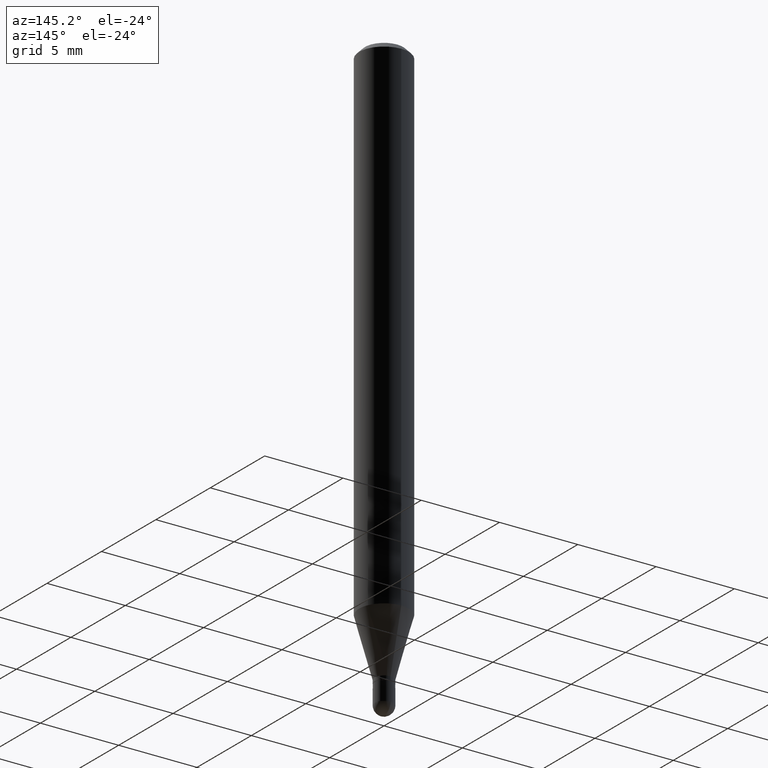
[diagram: clean part render]
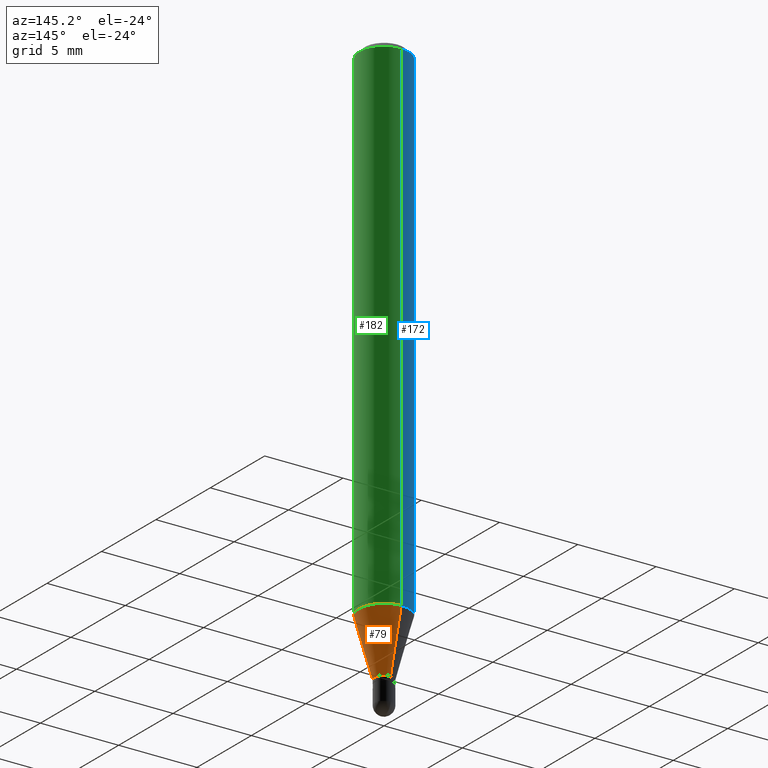
[diagram: same view with three faces highlighted in distinct colors, each labeled with its STEP entity id]
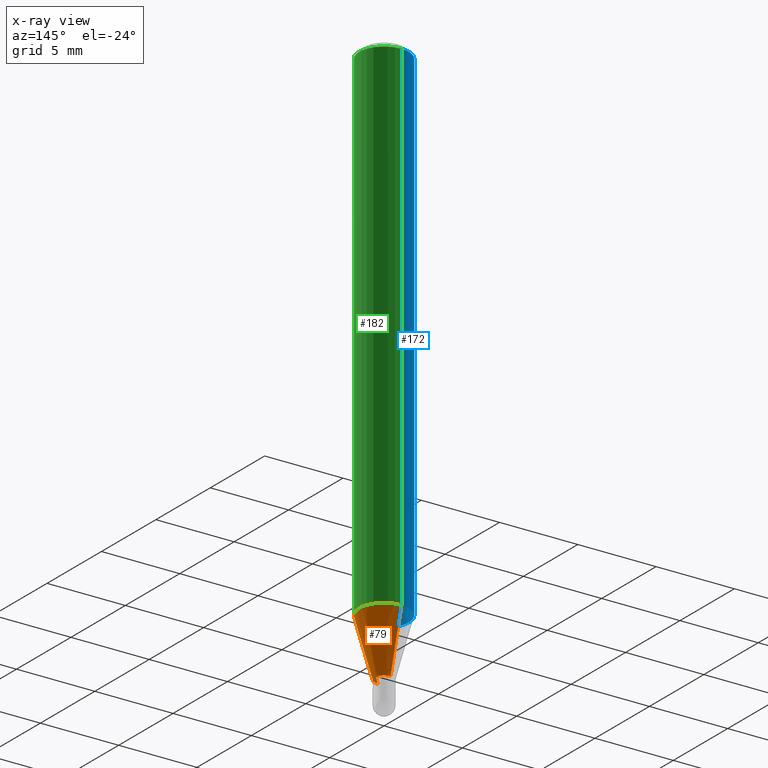
[diagram: x-ray of the same camera — body ghosted, the three highlighted faces saturated]
A machine part, auxiliary view with three faces highlighted in distinct colors.
The next image is the same camera in x-ray (body ghosted, the three faces saturated) — at least one of them is partly hidden behind the body in this view.
Their STEP definitions:

[orange] entity #79 — the highlighted conical surface has half-angle 15 deg.
#24 = DIRECTION ( 'NONE',  ( -2.445455239514301425E-29, 3.491500767087948658E-15, 1.000000000000000000 ) ) ;
#44 = DIRECTION ( 'NONE',  ( -6.982962677686266711E-15, -1.000000000000000000, 0.000000000000000000 ) ) ;
#51 = DIRECTION ( 'NONE',  ( 1.839019923739601104E-15, 0.2588190451025250693, 0.9659258262890670910 ) ) ;
#56 = LINE ( 'NONE', #323, #447 ) ;
#61 = AXIS2_PLACEMENT_3D ( 'NONE', #136, #370, #126 ) ;
#73 = VERTEX_POINT ( 'NONE', #241 ) ;
#74 = VERTEX_POINT ( 'NONE', #477 ) ;
#78 = ORIENTED_EDGE ( 'NONE', *, *, #278, .T. ) ;
#79 = ADVANCED_FACE ( 'NONE', ( #316 ), #267, .T. ) ;
#108 = CIRCLE ( 'NONE', #61, 0.02349999999999992373 ) ;
#109 = DIRECTION ( 'NONE',  ( -6.982962677686265922E-15, -1.000000000000000000, 4.370956789862821150E-15 ) ) ;
#124 = VECTOR ( 'NONE', #51, 39.37007874015748143 ) ;
#126 = DIRECTION ( 'NONE',  ( -6.982962677686266711E-15, -1.000000000000000000, 0.000000000000000000 ) ) ;
#136 = CARTESIAN_POINT ( 'NONE',  ( 3.470100984870794187E-29, -4.954439588497799171E-15, -1.419000000000000039 ) ) ;
#138 = CARTESIAN_POINT ( 'NONE',  ( -4.364351673553606573E-16, -0.06250000000000446865, -1.273450018504813874 ) ) ;
#141 = AXIS2_PLACEMENT_3D ( 'NONE', #221, #24, #109 ) ;
#193 = ORIENTED_EDGE ( 'NONE', *, *, #264, .T. ) ;
#214 = DIRECTION ( 'NONE',  ( -1.807323732225330928E-15, -0.2588190451025182970, 0.9659258262890689783 ) ) ;
#221 = CARTESIAN_POINT ( 'NONE',  ( 3.114165020012181903E-29, -4.446251716457720788E-15, -1.273450018504814096 ) ) ;
#241 = CARTESIAN_POINT ( 'NONE',  ( -1.640996229255920244E-16, -0.02350000000000488157, -1.419000000000000039 ) ) ;
#249 = EDGE_CURVE ( 'NONE', #73, #346, #56, .T. ) ;
#264 = EDGE_CURVE ( 'NONE', #73, #74, #108, .T. ) ;
#267 = CONICAL_SURFACE ( 'NONE', #375, 0.02349999999999992373, 0.2617993877991502960 ) ;
#278 = EDGE_CURVE ( 'NONE', #74, #496, #374, .T. ) ;
#302 = EDGE_LOOP ( 'NONE', ( #193, #78, #446, #381 ) ) ;
#306 = CIRCLE ( 'NONE', #141, 0.06250000000000000000 ) ;
#316 = FACE_OUTER_BOUND ( 'NONE', #302, .T. ) ;
#323 = CARTESIAN_POINT ( 'NONE',  ( -1.640996229255920244E-16, -0.02350000000000488157, -1.419000000000000039 ) ) ;
#328 = CARTESIAN_POINT ( 'NONE',  ( 1.669775429036576870E-16, 0.02349999999999496936, -1.419000000000000039 ) ) ;
#346 = VERTEX_POINT ( 'NONE', #138 ) ;
#355 = EDGE_CURVE ( 'NONE', #346, #496, #306, .T. ) ;
#361 = CARTESIAN_POINT ( 'NONE',  ( 3.470100984870794187E-29, -4.954439588497799171E-15, -1.419000000000000039 ) ) ;
#370 = DIRECTION ( 'NONE',  ( -2.445455239514301425E-29, 3.491500767087948658E-15, 1.000000000000000000 ) ) ;
#374 = LINE ( 'NONE', #328, #124 ) ;
#375 = AXIS2_PLACEMENT_3D ( 'NONE', #361, #481, #44 ) ;
#381 = ORIENTED_EDGE ( 'NONE', *, *, #249, .F. ) ;
#391 = CARTESIAN_POINT ( 'NONE',  ( 4.440892098500934804E-16, 0.06249999999999553135, -1.273450018504814318 ) ) ;
#446 = ORIENTED_EDGE ( 'NONE', *, *, #355, .F. ) ;
#447 = VECTOR ( 'NONE', #214, 39.37007874015748143 ) ;
#477 = CARTESIAN_POINT ( 'NONE',  ( 3.055333763768757932E-16, 0.02349999999999496589, -1.419000000000000039 ) ) ;
#481 = DIRECTION ( 'NONE',  ( -2.445455239514301425E-29, 3.491500767087948658E-15, 1.000000000000000000 ) ) ;
#496 = VERTEX_POINT ( 'NONE', #391 ) ;

[blue] entity #172 — the highlighted cylindrical surface (edge-blend (fillet) strip) has radius 1.5875 mm, axis along (-0, 0, 1).
#5 = DIRECTION ( 'NONE',  ( -2.445455239514301425E-29, 3.491500767087948658E-15, 1.000000000000000000 ) ) ;
#14 = CYLINDRICAL_SURFACE ( 'NONE', #478, 0.06250000000000000000 ) ;
#17 = LINE ( 'NONE', #19, #410 ) ;
#19 = CARTESIAN_POINT ( 'NONE',  ( -4.364351673553916201E-16, -0.06250000000000000000, 2.182187979429967912E-16 ) ) ;
#20 = EDGE_CURVE ( 'NONE', #134, #387, #468, .T. ) ;
#38 = EDGE_CURVE ( 'NONE', #496, #134, #434, .T. ) ;
#52 = EDGE_CURVE ( 'NONE', #496, #346, #210, .T. ) ;
#75 = CARTESIAN_POINT ( 'NONE',  ( 4.440892098500625669E-16, 0.06250000000000000000, -2.182187979429967912E-16 ) ) ;
#81 = DIRECTION ( 'NONE',  ( -6.982962677686265922E-15, -1.000000000000000000, 4.370956789862821150E-15 ) ) ;
#130 = CARTESIAN_POINT ( 'NONE',  ( 4.440892098500938748E-16, 0.06249999999999995143, -0.01500000000000022669 ) ) ;
#134 = VERTEX_POINT ( 'NONE', #130 ) ;
#138 = CARTESIAN_POINT ( 'NONE',  ( -4.364351673553606573E-16, -0.06250000000000446865, -1.273450018504813874 ) ) ;
#154 = DIRECTION ( 'NONE',  ( -2.445455239514301425E-29, 3.491500767087948658E-15, 1.000000000000000000 ) ) ;
#166 = DIRECTION ( 'NONE',  ( -2.445455239514301425E-29, 3.491500767087948658E-15, 1.000000000000000000 ) ) ;
#169 = VECTOR ( 'NONE', #166, 39.37007874015748143 ) ;
#171 = DIRECTION ( 'NONE',  ( -2.445455239514301425E-29, 3.491500767087948658E-15, 1.000000000000000000 ) ) ;
#172 = ADVANCED_FACE ( 'NONE', ( #495 ), #14, .T. ) ;
#194 = AXIS2_PLACEMENT_3D ( 'NONE', #399, #5, #81 ) ;
#209 = DIRECTION ( 'NONE',  ( -2.445455239514301425E-29, 3.491500767087948658E-15, 1.000000000000000000 ) ) ;
#210 = CIRCLE ( 'NONE', #194, 0.06250000000000000000 ) ;
#215 = EDGE_CURVE ( 'NONE', #346, #387, #17, .T. ) ;
#247 = CARTESIAN_POINT ( 'NONE',  ( 3.668182859271454205E-31, -5.237251150631926020E-17, -0.01500000000000000812 ) ) ;
#266 = EDGE_LOOP ( 'NONE', ( #269, #425, #336, #500 ) ) ;
#269 = ORIENTED_EDGE ( 'NONE', *, *, #38, .F. ) ;
#336 = ORIENTED_EDGE ( 'NONE', *, *, #215, .T. ) ;
#346 = VERTEX_POINT ( 'NONE', #138 ) ;
#387 = VERTEX_POINT ( 'NONE', #457 ) ;
#391 = CARTESIAN_POINT ( 'NONE',  ( 4.440892098500934804E-16, 0.06249999999999553135, -1.273450018504814318 ) ) ;
#399 = CARTESIAN_POINT ( 'NONE',  ( 3.114165020012181903E-29, -4.446251716457720788E-15, -1.273450018504814096 ) ) ;
#407 = DIRECTION ( 'NONE',  ( -6.982962677686265922E-15, -1.000000000000000000, 3.483106191921935554E-15 ) ) ;
#410 = VECTOR ( 'NONE', #171, 39.37007874015748143 ) ;
#425 = ORIENTED_EDGE ( 'NONE', *, *, #52, .T. ) ;
#434 = LINE ( 'NONE', #75, #169 ) ;
#449 = CARTESIAN_POINT ( 'NONE',  ( 0.000000000000000000, 0.000000000000000000, 0.000000000000000000 ) ) ;
#452 = DIRECTION ( 'NONE',  ( -6.982962677686265922E-15, -1.000000000000000000, 3.491500767087948658E-15 ) ) ;
#457 = CARTESIAN_POINT ( 'NONE',  ( -4.364351673553912750E-16, -0.06250000000000005551, -0.01499999999999979128 ) ) ;
#468 = CIRCLE ( 'NONE', #487, 0.06250000000000000000 ) ;
#478 = AXIS2_PLACEMENT_3D ( 'NONE', #449, #209, #452 ) ;
#487 = AXIS2_PLACEMENT_3D ( 'NONE', #247, #154, #407 ) ;
#495 = FACE_OUTER_BOUND ( 'NONE', #266, .T. ) ;
#496 = VERTEX_POINT ( 'NONE', #391 ) ;
#500 = ORIENTED_EDGE ( 'NONE', *, *, #20, .F. ) ;

[green] entity #182 — the highlighted cylindrical surface (edge-blend (fillet) strip) has radius 1.5875 mm, axis along (-0, 0, 1).
#17 = LINE ( 'NONE', #19, #410 ) ;
#19 = CARTESIAN_POINT ( 'NONE',  ( -4.364351673553916201E-16, -0.06250000000000000000, 2.182187979429967912E-16 ) ) ;
#24 = DIRECTION ( 'NONE',  ( -2.445455239514301425E-29, 3.491500767087948658E-15, 1.000000000000000000 ) ) ;
#26 = ORIENTED_EDGE ( 'NONE', *, *, #215, .F. ) ;
#38 = EDGE_CURVE ( 'NONE', #496, #134, #434, .T. ) ;
#53 = CARTESIAN_POINT ( 'NONE',  ( 3.668182859271454205E-31, -5.237251150631926020E-17, -0.01500000000000000812 ) ) ;
#75 = CARTESIAN_POINT ( 'NONE',  ( 4.440892098500625669E-16, 0.06250000000000000000, -2.182187979429967912E-16 ) ) ;
#87 = CYLINDRICAL_SURFACE ( 'NONE', #458, 0.06250000000000000000 ) ;
#89 = EDGE_LOOP ( 'NONE', ( #506, #498, #378, #26 ) ) ;
#109 = DIRECTION ( 'NONE',  ( -6.982962677686265922E-15, -1.000000000000000000, 4.370956789862821150E-15 ) ) ;
#130 = CARTESIAN_POINT ( 'NONE',  ( 4.440892098500938748E-16, 0.06249999999999995143, -0.01500000000000022669 ) ) ;
#134 = VERTEX_POINT ( 'NONE', #130 ) ;
#138 = CARTESIAN_POINT ( 'NONE',  ( -4.364351673553606573E-16, -0.06250000000000446865, -1.273450018504813874 ) ) ;
#141 = AXIS2_PLACEMENT_3D ( 'NONE', #221, #24, #109 ) ;
#164 = EDGE_CURVE ( 'NONE', #387, #134, #227, .T. ) ;
#166 = DIRECTION ( 'NONE',  ( -2.445455239514301425E-29, 3.491500767087948658E-15, 1.000000000000000000 ) ) ;
#169 = VECTOR ( 'NONE', #166, 39.37007874015748143 ) ;
#171 = DIRECTION ( 'NONE',  ( -2.445455239514301425E-29, 3.491500767087948658E-15, 1.000000000000000000 ) ) ;
#182 = ADVANCED_FACE ( 'NONE', ( #208 ), #87, .T. ) ;
#208 = FACE_OUTER_BOUND ( 'NONE', #89, .T. ) ;
#215 = EDGE_CURVE ( 'NONE', #346, #387, #17, .T. ) ;
#221 = CARTESIAN_POINT ( 'NONE',  ( 3.114165020012181903E-29, -4.446251716457720788E-15, -1.273450018504814096 ) ) ;
#227 = CIRCLE ( 'NONE', #393, 0.06250000000000000000 ) ;
#258 = CARTESIAN_POINT ( 'NONE',  ( 0.000000000000000000, 0.000000000000000000, 0.000000000000000000 ) ) ;
#287 = DIRECTION ( 'NONE',  ( -6.982962677686265922E-15, -1.000000000000000000, 3.483106191921935554E-15 ) ) ;
#306 = CIRCLE ( 'NONE', #141, 0.06250000000000000000 ) ;
#346 = VERTEX_POINT ( 'NONE', #138 ) ;
#355 = EDGE_CURVE ( 'NONE', #346, #496, #306, .T. ) ;
#368 = DIRECTION ( 'NONE',  ( -2.445455239514301425E-29, 3.491500767087948658E-15, 1.000000000000000000 ) ) ;
#378 = ORIENTED_EDGE ( 'NONE', *, *, #164, .F. ) ;
#387 = VERTEX_POINT ( 'NONE', #457 ) ;
#391 = CARTESIAN_POINT ( 'NONE',  ( 4.440892098500934804E-16, 0.06249999999999553135, -1.273450018504814318 ) ) ;
#393 = AXIS2_PLACEMENT_3D ( 'NONE', #53, #411, #287 ) ;
#410 = VECTOR ( 'NONE', #171, 39.37007874015748143 ) ;
#411 = DIRECTION ( 'NONE',  ( -2.445455239514301425E-29, 3.491500767087948658E-15, 1.000000000000000000 ) ) ;
#413 = DIRECTION ( 'NONE',  ( -6.982962677686265922E-15, -1.000000000000000000, 3.491500767087948658E-15 ) ) ;
#434 = LINE ( 'NONE', #75, #169 ) ;
#457 = CARTESIAN_POINT ( 'NONE',  ( -4.364351673553912750E-16, -0.06250000000000005551, -0.01499999999999979128 ) ) ;
#458 = AXIS2_PLACEMENT_3D ( 'NONE', #258, #368, #413 ) ;
#496 = VERTEX_POINT ( 'NONE', #391 ) ;
#498 = ORIENTED_EDGE ( 'NONE', *, *, #38, .T. ) ;
#506 = ORIENTED_EDGE ( 'NONE', *, *, #355, .T. ) ;